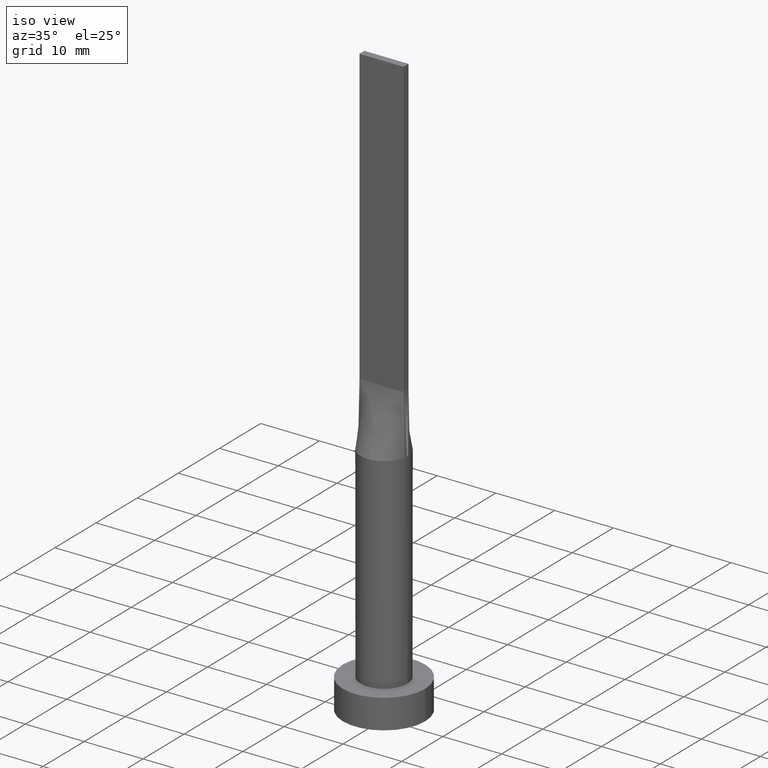
[diagram: clean part render]
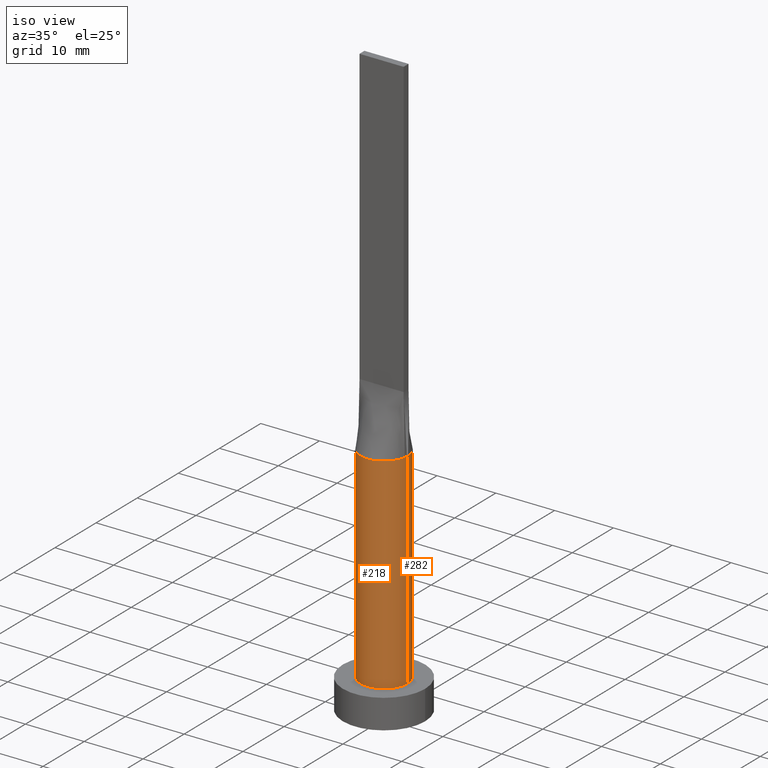
[diagram: same view with one multi-face feature highlighted, each face labeled with its STEP entity id]
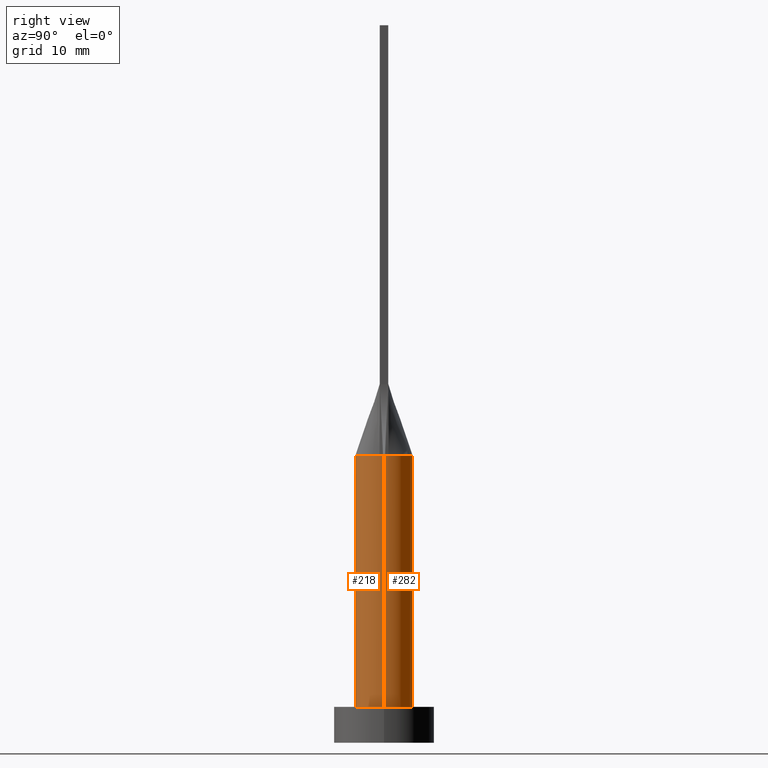
[diagram: same view with one multi-face feature highlighted, each face labeled with its STEP entity id]
A machine part, iso view. The highlighted faces form ONE feature: a constant-radius fillet chain: 2 tangent blend faces with common blend radius 4 mm. The faces share edges in the B-rep.
A second angle (right view) of the same feature is appended — it is thin or edge-on in the first view.
Their STEP definitions:
[1] entity #218 (Cylinder):
#8 = CARTESIAN_POINT ( 'NONE',  ( 3.950116941581656604, -0.6320178829360038053, 40.00000000000000000 ) ) ;
#12 = EDGE_LOOP ( 'NONE', ( #28, #369, #140, #553, #338, #149 ) ) ;
#25 = AXIS2_PLACEMENT_3D ( 'NONE', #70, #375, #515 ) ;
#28 = ORIENTED_EDGE ( 'NONE', *, *, #289, .F. ) ;
#44 = AXIS2_PLACEMENT_3D ( 'NONE', #344, #168, #525 ) ;
#47 = CARTESIAN_POINT ( 'NONE',  ( 0.000000000000000000, 0.000000000000000000, 40.00000000000000000 ) ) ;
#60 = VERTEX_POINT ( 'NONE', #345 ) ;
#70 = CARTESIAN_POINT ( 'NONE',  ( 0.000000000000000000, 0.000000000000000000, 5.000000000000000000 ) ) ;
#85 = AXIS2_PLACEMENT_3D ( 'NONE', #544, #496, #189 ) ;
#87 = CARTESIAN_POINT ( 'NONE',  ( 4.000000000000000000, 4.898587196589412829E-16, 5.000000000000000000 ) ) ;
#94 = VERTEX_POINT ( 'NONE', #87 ) ;
#102 = DIRECTION ( 'NONE',  ( -0.000000000000000000, -0.000000000000000000, -1.000000000000000000 ) ) ;
#109 = VERTEX_POINT ( 'NONE', #574 ) ;
#135 = CIRCLE ( 'NONE', #44, 4.000000000000000000 ) ;
#140 = ORIENTED_EDGE ( 'NONE', *, *, #527, .F. ) ;
#141 = LINE ( 'NONE', #326, #205 ) ;
#149 = ORIENTED_EDGE ( 'NONE', *, *, #334, .T. ) ;
#151 = VERTEX_POINT ( 'NONE', #479 ) ;
#168 = DIRECTION ( 'NONE',  ( 0.000000000000000000, 0.000000000000000000, 1.000000000000000000 ) ) ;
#189 = DIRECTION ( 'NONE',  ( 1.000000000000000000, 0.000000000000000000, 0.000000000000000000 ) ) ;
#190 = VERTEX_POINT ( 'NONE', #451 ) ;
#205 = VECTOR ( 'NONE', #102, 1000.000000000000000 ) ;
#206 = CIRCLE ( 'NONE', #25, 4.000000000000000000 ) ;
#218 = ADVANCED_FACE ( 'NONE', ( #314 ), #229, .T. ) ;
#229 = CYLINDRICAL_SURFACE ( 'NONE', #421, 4.000000000000000000 ) ;
#267 = VERTEX_POINT ( 'NONE', #8 ) ;
#270 = EDGE_CURVE ( 'NONE', #60, #190, #457, .T. ) ;
#289 = EDGE_CURVE ( 'NONE', #109, #94, #141, .T. ) ;
#314 = FACE_OUTER_BOUND ( 'NONE', #12, .T. ) ;
#326 = CARTESIAN_POINT ( 'NONE',  ( 4.000000000000000000, 4.898587196589412829E-16, 40.00000000000000000 ) ) ;
#334 = EDGE_CURVE ( 'NONE', #151, #94, #206, .T. ) ;
#338 = ORIENTED_EDGE ( 'NONE', *, *, #536, .T. ) ;
#344 = CARTESIAN_POINT ( 'NONE',  ( 0.000000000000000000, 0.000000000000000000, 40.00000000000000000 ) ) ;
#345 = CARTESIAN_POINT ( 'NONE',  ( -3.999842262273348048, -9.740943882706926662E-16, 40.00000000000000000 ) ) ;
#357 = DIRECTION ( 'NONE',  ( 1.000000000000000000, 0.000000000000000000, 0.000000000000000000 ) ) ;
#367 = LINE ( 'NONE', #407, #433 ) ;
#369 = ORIENTED_EDGE ( 'NONE', *, *, #461, .F. ) ;
#375 = DIRECTION ( 'NONE',  ( 0.000000000000000000, 0.000000000000000000, 1.000000000000000000 ) ) ;
#403 = DIRECTION ( 'NONE',  ( -1.000000000000000000, 0.000000000000000000, 0.000000000000000000 ) ) ;
#407 = CARTESIAN_POINT ( 'NONE',  ( -4.000000000000000000, 0.000000000000000000, 40.00000000000000000 ) ) ;
#421 = AXIS2_PLACEMENT_3D ( 'NONE', #490, #460, #403 ) ;
#433 = VECTOR ( 'NONE', #448, 1000.000000000000000 ) ;
#448 = DIRECTION ( 'NONE',  ( -0.000000000000000000, -0.000000000000000000, -1.000000000000000000 ) ) ;
#451 = CARTESIAN_POINT ( 'NONE',  ( -3.950111798046394007, -0.6320171791297864994, 40.00000000000000000 ) ) ;
#457 = CIRCLE ( 'NONE', #85, 4.000000000000000000 ) ;
#460 = DIRECTION ( 'NONE',  ( -0.000000000000000000, -0.000000000000000000, -1.000000000000000000 ) ) ;
#461 = EDGE_CURVE ( 'NONE', #267, #109, #135, .T. ) ;
#468 = CIRCLE ( 'NONE', #530, 4.000000000000000000 ) ;
#479 = CARTESIAN_POINT ( 'NONE',  ( -4.000000000000000000, 0.000000000000000000, 5.000000000000000000 ) ) ;
#490 = CARTESIAN_POINT ( 'NONE',  ( 0.000000000000000000, 0.000000000000000000, 40.00000000000000000 ) ) ;
#496 = DIRECTION ( 'NONE',  ( 0.000000000000000000, 0.000000000000000000, 1.000000000000000000 ) ) ;
#497 = DIRECTION ( 'NONE',  ( 0.000000000000000000, 0.000000000000000000, 1.000000000000000000 ) ) ;
#515 = DIRECTION ( 'NONE',  ( 1.000000000000000000, 0.000000000000000000, 0.000000000000000000 ) ) ;
#525 = DIRECTION ( 'NONE',  ( 1.000000000000000000, 9.769962616701377556E-15, 0.000000000000000000 ) ) ;
#527 = EDGE_CURVE ( 'NONE', #190, #267, #468, .T. ) ;
#530 = AXIS2_PLACEMENT_3D ( 'NONE', #47, #497, #357 ) ;
#536 = EDGE_CURVE ( 'NONE', #60, #151, #367, .T. ) ;
#544 = CARTESIAN_POINT ( 'NONE',  ( 0.000000000000000000, 0.000000000000000000, 40.00000000000000000 ) ) ;
#553 = ORIENTED_EDGE ( 'NONE', *, *, #270, .F. ) ;
#574 = CARTESIAN_POINT ( 'NONE',  ( 3.999842262273348936, 9.852009208038395466E-16, 40.00000000000000000 ) ) ;
[2] entity #282 (Cylinder):
#2 = CARTESIAN_POINT ( 'NONE',  ( 3.461914487322979017, 2.043998057340944197, 40.00000000000000000 ) ) ;
#4 = CARTESIAN_POINT ( 'NONE',  ( -2.553164211252348714, 3.116528153703943538, 39.99999999999999289 ) ) ;
#18 = EDGE_CURVE ( 'NONE', #109, #62, #484, .T. ) ;
#34 = AXIS2_PLACEMENT_3D ( 'NONE', #213, #529, #389 ) ;
#48 = CARTESIAN_POINT ( 'NONE',  ( 3.897760447583618948, 0.9569750049467118380, 40.00000000000000000 ) ) ;
#59 = DIRECTION ( 'NONE',  ( -1.000000000000000000, 0.000000000000000000, 0.000000000000000000 ) ) ;
#60 = VERTEX_POINT ( 'NONE', #345 ) ;
#62 = VERTEX_POINT ( 'NONE', #129 ) ;
#69 = ORIENTED_EDGE ( 'NONE', *, *, #18, .F. ) ;
#77 = DIRECTION ( 'NONE',  ( 0.000000000000000000, 0.000000000000000000, 1.000000000000000000 ) ) ;
#87 = CARTESIAN_POINT ( 'NONE',  ( 4.000000000000000000, 4.898587196589412829E-16, 5.000000000000000000 ) ) ;
#93 = DIRECTION ( 'NONE',  ( -0.000000000000000000, -0.000000000000000000, -1.000000000000000000 ) ) ;
#94 = VERTEX_POINT ( 'NONE', #87 ) ;
#97 = CARTESIAN_POINT ( 'NONE',  ( 2.553164211252348714, 3.116528153703943538, 40.00000000000000000 ) ) ;
#98 = CARTESIAN_POINT ( 'NONE',  ( -1.134810363096319996, 3.874001625491799938, 40.00000000000000711 ) ) ;
#100 = CARTESIAN_POINT ( 'NONE',  ( 1.134810363096318664, 3.874001625491799050, 40.00000000000000000 ) ) ;
#102 = DIRECTION ( 'NONE',  ( -0.000000000000000000, -0.000000000000000000, -1.000000000000000000 ) ) ;
#104 = ORIENTED_EDGE ( 'NONE', *, *, #254, .F. ) ;
#109 = VERTEX_POINT ( 'NONE', #574 ) ;
#129 = CARTESIAN_POINT ( 'NONE',  ( 3.950097303404373150, 0.6320148730971616446, 40.00000000000000000 ) ) ;
#139 = CARTESIAN_POINT ( 'NONE',  ( -2.127794970397209884, 3.430476893735948440, 39.99999999999999289 ) ) ;
#141 = LINE ( 'NONE', #326, #205 ) ;
#146 = AXIS2_PLACEMENT_3D ( 'NONE', #558, #464, #290 ) ;
#151 = VERTEX_POINT ( 'NONE', #479 ) ;
#170 = EDGE_LOOP ( 'NONE', ( #69, #462, #423, #194, #404, #104 ) ) ;
#179 = CARTESIAN_POINT ( 'NONE',  ( 3.219262664220058134, 2.422342486356523938, 39.99999999999999289 ) ) ;
#181 = CARTESIAN_POINT ( 'NONE',  ( 2.127794970397208107, 3.430476893735948885, 39.99999999999999289 ) ) ;
#194 = ORIENTED_EDGE ( 'NONE', *, *, #536, .F. ) ;
#205 = VECTOR ( 'NONE', #102, 1000.000000000000000 ) ;
#213 = CARTESIAN_POINT ( 'NONE',  ( 0.000000000000000000, 0.000000000000000000, 40.00000000000000000 ) ) ;
#230 = VERTEX_POINT ( 'NONE', #456 ) ;
#254 = EDGE_CURVE ( 'NONE', #62, #230, #494, .T. ) ;
#273 = CARTESIAN_POINT ( 'NONE',  ( -3.461914487322979905, 2.043998057340944197, 40.00000000000000711 ) ) ;
#276 = CYLINDRICAL_SURFACE ( 'NONE', #503, 4.000000000000000000 ) ;
#278 = CARTESIAN_POINT ( 'NONE',  ( -3.897760447583618504, 0.9569750049467115049, 40.00000000000000000 ) ) ;
#282 = ADVANCED_FACE ( 'NONE', ( #371 ), #276, .T. ) ;
#289 = EDGE_CURVE ( 'NONE', #109, #94, #141, .T. ) ;
#290 = DIRECTION ( 'NONE',  ( 1.000000000000000000, 0.000000000000000000, 0.000000000000000000 ) ) ;
#302 = CIRCLE ( 'NONE', #329, 4.000000000000000000 ) ;
#316 = CARTESIAN_POINT ( 'NONE',  ( -0.5684794080625158452, 3.999999999999999112, 39.99999999999999289 ) ) ;
#320 = CARTESIAN_POINT ( 'NONE',  ( -3.800365609718893811, 1.311488165564686392, 40.00000000000000000 ) ) ;
#326 = CARTESIAN_POINT ( 'NONE',  ( 4.000000000000000000, 4.898587196589412829E-16, 40.00000000000000000 ) ) ;
#329 = AXIS2_PLACEMENT_3D ( 'NONE', #475, #77, #391 ) ;
#343 = EDGE_CURVE ( 'NONE', #230, #60, #493, .T. ) ;
#345 = CARTESIAN_POINT ( 'NONE',  ( -3.999842262273348048, -9.740943882706926662E-16, 40.00000000000000000 ) ) ;
#361 = CARTESIAN_POINT ( 'NONE',  ( -3.950102418235696522, 0.6320155757311002320, 40.00000000000000000 ) ) ;
#367 = LINE ( 'NONE', #407, #433 ) ;
#368 = CARTESIAN_POINT ( 'NONE',  ( 3.800365609718893367, 1.311488165564687058, 40.00000000000000711 ) ) ;
#371 = FACE_OUTER_BOUND ( 'NONE', #170, .T. ) ;
#389 = DIRECTION ( 'NONE',  ( 1.000000000000000000, 0.000000000000000000, 0.000000000000000000 ) ) ;
#391 = DIRECTION ( 'NONE',  ( 1.000000000000000000, 0.000000000000000000, 0.000000000000000000 ) ) ;
#404 = ORIENTED_EDGE ( 'NONE', *, *, #343, .F. ) ;
#407 = CARTESIAN_POINT ( 'NONE',  ( -4.000000000000000000, 0.000000000000000000, 40.00000000000000000 ) ) ;
#410 = EDGE_CURVE ( 'NONE', #94, #151, #302, .T. ) ;
#423 = ORIENTED_EDGE ( 'NONE', *, *, #410, .T. ) ;
#433 = VECTOR ( 'NONE', #448, 1000.000000000000000 ) ;
#448 = DIRECTION ( 'NONE',  ( -0.000000000000000000, -0.000000000000000000, -1.000000000000000000 ) ) ;
#454 = CARTESIAN_POINT ( 'NONE',  ( 0.000000000000000000, 0.000000000000000000, 40.00000000000000000 ) ) ;
#456 = CARTESIAN_POINT ( 'NONE',  ( -3.950102418235696522, 0.6320155757311002320, 40.00000000000000000 ) ) ;
#462 = ORIENTED_EDGE ( 'NONE', *, *, #289, .T. ) ;
#464 = DIRECTION ( 'NONE',  ( 0.000000000000000000, 0.000000000000000000, 1.000000000000000000 ) ) ;
#475 = CARTESIAN_POINT ( 'NONE',  ( 0.000000000000000000, 0.000000000000000000, 5.000000000000000000 ) ) ;
#479 = CARTESIAN_POINT ( 'NONE',  ( -4.000000000000000000, 0.000000000000000000, 5.000000000000000000 ) ) ;
#484 = CIRCLE ( 'NONE', #34, 4.000000000000000000 ) ;
#492 = CARTESIAN_POINT ( 'NONE',  ( -3.219262664220059023, 2.422342486356523938, 39.99999999999998579 ) ) ;
#493 = CIRCLE ( 'NONE', #146, 4.000000000000000000 ) ;
#494 = B_SPLINE_CURVE_WITH_KNOTS ( 'NONE', 3,
 ( #542, #48, #368, #2, #179, #97, #181, #100, #501, #316, #98, #139, #4, #492, #273, #320, #278, #361 ),
 .UNSPECIFIED., .F., .F.,
 ( 4, 2, 2, 2, 2, 2, 2, 2, 4 ),
 ( 0.000000000000000000, 0.1249999999999999445, 0.2499999999999998890, 0.3749999999999998335, 0.4999999999999997780, 0.6249999999999997780, 0.7499999999999998890, 0.8749999999999998890, 1.000000000000000000 ),
 .UNSPECIFIED. ) ;
#501 = CARTESIAN_POINT ( 'NONE',  ( 0.5684794080625145130, 4.000000000000000000, 39.99999999999999289 ) ) ;
#503 = AXIS2_PLACEMENT_3D ( 'NONE', #454, #93, #59 ) ;
#529 = DIRECTION ( 'NONE',  ( 0.000000000000000000, 0.000000000000000000, 1.000000000000000000 ) ) ;
#536 = EDGE_CURVE ( 'NONE', #60, #151, #367, .T. ) ;
#542 = CARTESIAN_POINT ( 'NONE',  ( 3.950097303404373150, 0.6320148730971616446, 40.00000000000000000 ) ) ;
#558 = CARTESIAN_POINT ( 'NONE',  ( 0.000000000000000000, 0.000000000000000000, 40.00000000000000000 ) ) ;
#574 = CARTESIAN_POINT ( 'NONE',  ( 3.999842262273348936, 9.852009208038395466E-16, 40.00000000000000000 ) ) ;